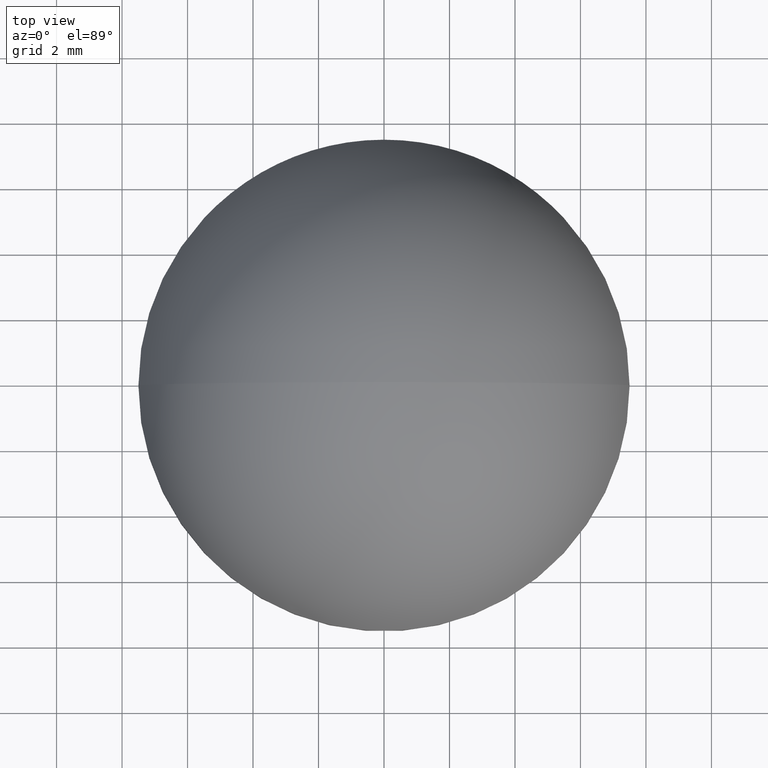
[diagram: clean part render]
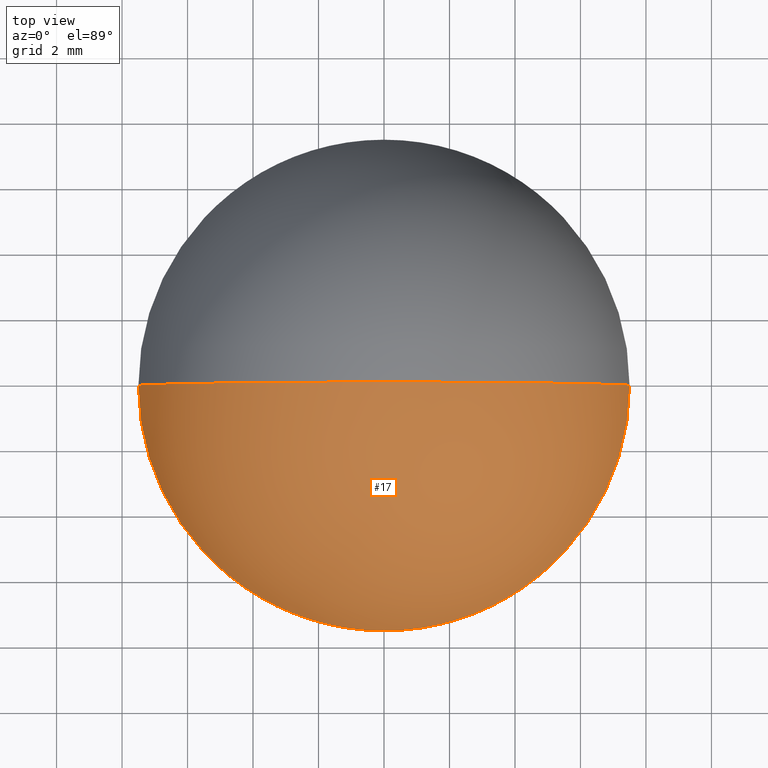
[diagram: same view with one face highlighted and labeled with its STEP entity id]
A machine part, top view. The second image highlights one B-rep face of the part: STEP entity #17.
In plain terms, the highlighted spherical surface has radius 7.8029 mm.
Its self-contained STEP definition (entity closure, byte-faithful):
#5 = VERTEX_POINT ( 'NONE', #76 ) ;
#17 = ADVANCED_FACE ( 'NONE', ( #124 ), #179, .T. ) ;
#18 = CIRCLE ( 'NONE', #57, 7.802876106194690742 ) ;
#23 = DIRECTION ( 'NONE',  ( -0.000000000000000000, -1.000000000000000000, 0.000000000000000000 ) ) ;
#39 = EDGE_LOOP ( 'NONE', ( #142, #157, #40 ) ) ;
#40 = ORIENTED_EDGE ( 'NONE', *, *, #185, .F. ) ;
#41 = CIRCLE ( 'NONE', #136, 7.500000000000000888 ) ;
#49 = CARTESIAN_POINT ( 'NONE',  ( -9.114692313739364955E-16, 0.000000000000000000, 7.000000000000000000 ) ) ;
#57 = AXIS2_PLACEMENT_3D ( 'NONE', #61, #128, #85 ) ;
#61 = CARTESIAN_POINT ( 'NONE',  ( -4.336808689942017736E-16, 0.000000000000000000, -0.8028761061946902977 ) ) ;
#63 = CARTESIAN_POINT ( 'NONE',  ( -4.336808689942017736E-16, 0.000000000000000000, -0.8028761061946902977 ) ) ;
#64 = CARTESIAN_POINT ( 'NONE',  ( 0.000000000000000000, 0.000000000000000000, 1.350000000000000089 ) ) ;
#75 = DIRECTION ( 'NONE',  ( -1.000000000000000000, 0.000000000000000000, 0.000000000000000000 ) ) ;
#76 = CARTESIAN_POINT ( 'NONE',  ( -7.500000000000000888, 0.000000000000000000, 1.350000000000000089 ) ) ;
#83 = DIRECTION ( 'NONE',  ( 1.000000000000000000, 0.000000000000000000, 0.000000000000000000 ) ) ;
#85 = DIRECTION ( 'NONE',  ( 0.000000000000000000, 0.000000000000000000, 1.000000000000000000 ) ) ;
#101 = AXIS2_PLACEMENT_3D ( 'NONE', #63, #115, #186 ) ;
#115 = DIRECTION ( 'NONE',  ( -1.224646799147353207E-16, -1.000000000000000000, -0.000000000000000000 ) ) ;
#124 = FACE_OUTER_BOUND ( 'NONE', #39, .T. ) ;
#125 = EDGE_CURVE ( 'NONE', #5, #188, #41, .T. ) ;
#128 = DIRECTION ( 'NONE',  ( 0.000000000000000000, 1.000000000000000000, 0.000000000000000000 ) ) ;
#131 = DIRECTION ( 'NONE',  ( 0.000000000000000000, 0.000000000000000000, 1.000000000000000000 ) ) ;
#136 = AXIS2_PLACEMENT_3D ( 'NONE', #64, #131, #83 ) ;
#139 = CARTESIAN_POINT ( 'NONE',  ( -4.336808689942017736E-16, 0.000000000000000000, -0.8028761061946902977 ) ) ;
#140 = EDGE_CURVE ( 'NONE', #188, #208, #180, .T. ) ;
#142 = ORIENTED_EDGE ( 'NONE', *, *, #125, .T. ) ;
#151 = AXIS2_PLACEMENT_3D ( 'NONE', #139, #23, #75 ) ;
#157 = ORIENTED_EDGE ( 'NONE', *, *, #140, .T. ) ;
#179 = SPHERICAL_SURFACE ( 'NONE', #151, 7.802876106194690742 ) ;
#180 = CIRCLE ( 'NONE', #101, 7.802876106194690742 ) ;
#185 = EDGE_CURVE ( 'NONE', #5, #208, #18, .T. ) ;
#186 = DIRECTION ( 'NONE',  ( 1.000000000000000000, -1.224646799147353207E-16, 0.000000000000000000 ) ) ;
#188 = VERTEX_POINT ( 'NONE', #198 ) ;
#198 = CARTESIAN_POINT ( 'NONE',  ( 7.500000000000000888, 9.184850993605147944E-16, 1.350000000000000089 ) ) ;
#208 = VERTEX_POINT ( 'NONE', #49 ) ;